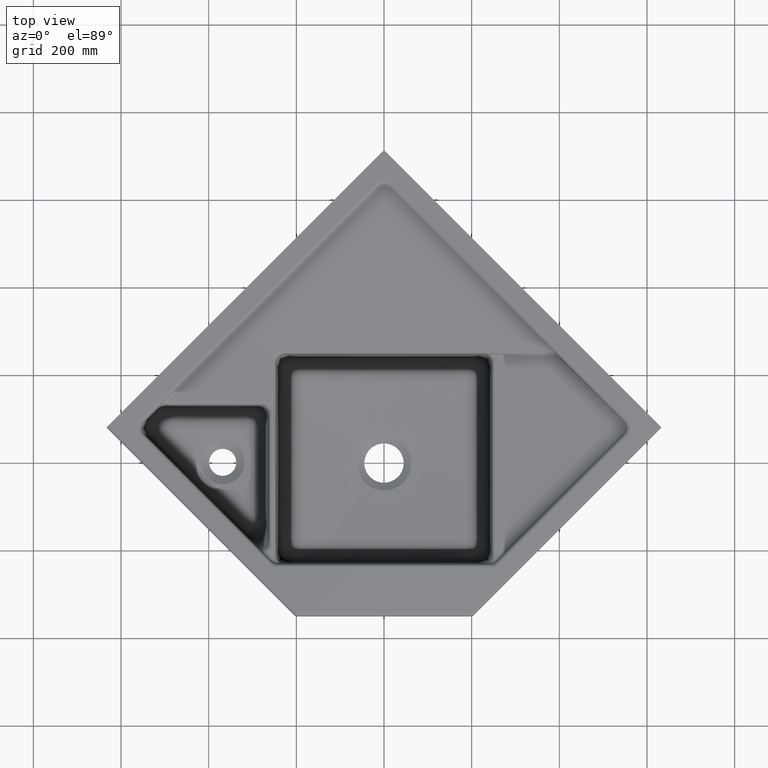
[diagram: clean part render]
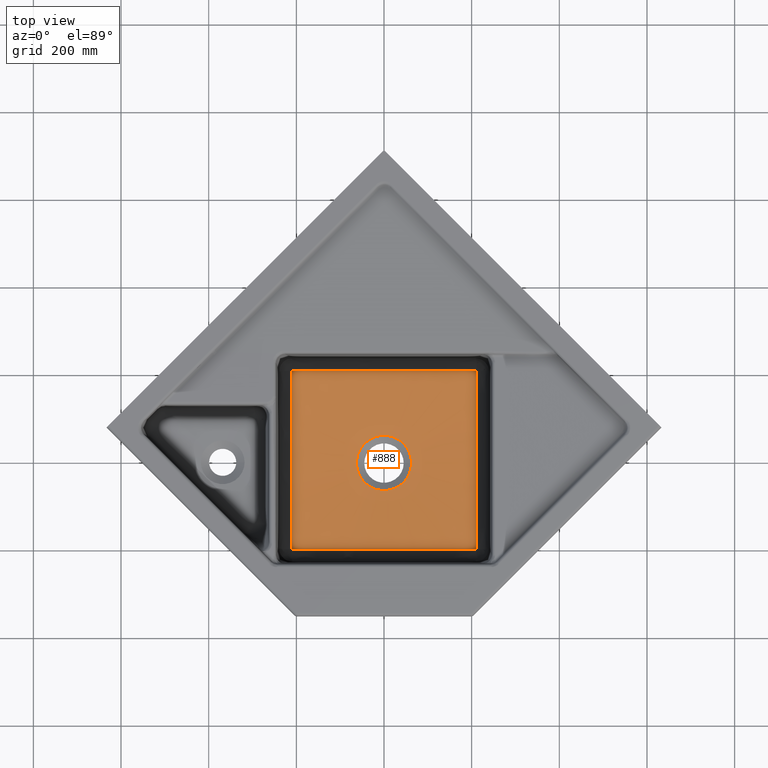
[diagram: same view with one face highlighted and labeled with its STEP entity id]
A machine part, top view. The second image highlights one B-rep face of the part: STEP entity #888.
In plain terms, the highlighted conical surface has half-angle 86 deg.
Its self-contained STEP definition (entity closure, byte-faithful):
#46=CONICAL_SURFACE('',#6134,298.8698194069,86.0000000000002);
#487=CIRCLE('',#6123,63.);
#537=FACE_BOUND('',#1862,.T.);
#538=FACE_BOUND('',#1863,.T.);
#888=ADVANCED_FACE('',(#537,#538),#46,.F.);
#1862=EDGE_LOOP('',(#3546));
#1863=EDGE_LOOP('',(#3547,#3548,#3549,#3550,#3551,#3552,#3553,#3554));
#2084=(
BOUNDED_CURVE()
B_SPLINE_CURVE(3,(#38663,#38664,#38665,#38666,#38667,#38668,#38669,#38670,
#38671,#38672,#38673,#38674,#38675,#38676),.UNSPECIFIED.,.F.,.F.)
B_SPLINE_CURVE_WITH_KNOTS((4,2,2,2,2,2,4),(0.,0.25,0.375,0.5,0.625,0.75,
1.),.UNSPECIFIED.)
CURVE()
GEOMETRIC_REPRESENTATION_ITEM()
RATIONAL_B_SPLINE_CURVE((0.999999999999986,0.999999999999987,0.999999999999987,
0.999999999999987,0.999999999999987,0.999999999999987,0.999999999999987,
0.999999999999987,0.999999999999987,0.999999999999987,0.999999999999987,
0.999999999999987,0.999999999999987,0.999999999999986))
REPRESENTATION_ITEM('')
);
#2087=(
BOUNDED_CURVE()
B_SPLINE_CURVE(3,(#38845,#38846,#38847,#38848,#38849,#38850,#38851,#38852,
#38853,#38854),.UNSPECIFIED.,.F.,.F.)
B_SPLINE_CURVE_WITH_KNOTS((4,2,2,2,4),(0.,0.25,0.5,0.75,1.),
 .UNSPECIFIED.)
CURVE()
GEOMETRIC_REPRESENTATION_ITEM()
RATIONAL_B_SPLINE_CURVE((1.,1.,1.,1.,1.,1.,1.,1.,1.,1.))
REPRESENTATION_ITEM('')
);
#2108=(
BOUNDED_CURVE()
B_SPLINE_CURVE(3,(#39852,#39853,#39854,#39855,#39856,#39857,#39858,#39859,
#39860,#39861),.UNSPECIFIED.,.F.,.F.)
B_SPLINE_CURVE_WITH_KNOTS((4,2,2,2,4),(0.,0.25,0.5,0.75,1.),
 .UNSPECIFIED.)
CURVE()
GEOMETRIC_REPRESENTATION_ITEM()
RATIONAL_B_SPLINE_CURVE((0.999999999999999,0.999999999999999,0.999999999999999,
0.999999999999999,0.999999999999999,0.999999999999999,0.999999999999999,
0.999999999999999,0.999999999999999,0.999999999999999))
REPRESENTATION_ITEM('')
);
#3546=ORIENTED_EDGE('',*,*,#5185,.F.);
#3547=ORIENTED_EDGE('',*,*,#5183,.F.);
#3548=ORIENTED_EDGE('',*,*,#5180,.F.);
#3549=ORIENTED_EDGE('',*,*,#5176,.F.);
#3550=ORIENTED_EDGE('',*,*,#5186,.F.);
#3551=ORIENTED_EDGE('',*,*,#5243,.T.);
#3552=ORIENTED_EDGE('',*,*,#5244,.T.);
#3553=ORIENTED_EDGE('',*,*,#5245,.T.);
#3554=ORIENTED_EDGE('',*,*,#5241,.F.);
#4389=VERTEX_POINT('',#38380);
#4390=VERTEX_POINT('',#38381);
#4392=VERTEX_POINT('',#38677);
#4394=VERTEX_POINT('',#38760);
#4395=VERTEX_POINT('',#38843);
#4396=VERTEX_POINT('',#38855);
#4427=VERTEX_POINT('',#39862);
#4428=VERTEX_POINT('',#39900);
#4429=VERTEX_POINT('',#39953);
#5176=EDGE_CURVE('',#4389,#4390,#5751,.T.);
#5180=EDGE_CURVE('',#4390,#4392,#2084,.T.);
#5183=EDGE_CURVE('',#4392,#4394,#5754,.T.);
#5185=EDGE_CURVE('',#4395,#4395,#487,.T.);
#5186=EDGE_CURVE('',#4396,#4389,#2087,.T.);
#5241=EDGE_CURVE('',#4394,#4427,#2108,.T.);
#5243=EDGE_CURVE('',#4396,#4428,#5785,.T.);
#5244=EDGE_CURVE('',#4428,#4429,#5786,.T.);
#5245=EDGE_CURVE('',#4429,#4427,#5787,.T.);
#5751=B_SPLINE_CURVE_WITH_KNOTS('',3,(#38292,#38293,#38294,#38295,#38296,
#38297,#38298,#38299,#38300,#38301,#38302,#38303,#38304,#38305,#38306,#38307,
#38308,#38309,#38310,#38311,#38312,#38313,#38314,#38315,#38316,#38317,#38318,
#38319,#38320,#38321,#38322,#38323,#38324,#38325,#38326,#38327,#38328,#38329,
#38330,#38331,#38332,#38333,#38334,#38335,#38336,#38337,#38338,#38339,#38340,
#38341,#38342,#38343,#38344,#38345,#38346,#38347,#38348,#38349,#38350,#38351,
#38352,#38353,#38354,#38355,#38356,#38357,#38358,#38359,#38360,#38361,#38362,
#38363,#38364,#38365,#38366,#38367,#38368,#38369,#38370,#38371,#38372,#38373,
#38374,#38375,#38376,#38377,#38378,#38379),.UNSPECIFIED.,.F.,.F.,(4,2,2,
2,2,2,2,2,2,2,2,2,2,2,2,2,2,2,2,2,2,2,2,2,2,2,2,2,2,2,2,2,2,2,2,2,2,2,2,
2,2,2,2,4),(0.,0.000244140625000111,0.00048828125,0.000732421874999889,
0.000976562500000111,0.00146484375000011,0.00195312500000011,0.00292968750000022,
0.00341796875,0.00390625,0.00488281249999989,0.005859375,0.00781250000000011,
0.0117187499999999,0.015625,0.0312499999999999,0.0625,0.09375,0.125,0.1875,
0.25,0.375,0.5,0.625,0.75,0.8125,0.875,0.9375,0.96875,0.984375,0.98828125,
0.9921875,0.994140625,0.9951171875,0.99609375,0.99658203125,0.9970703125,
0.998046875,0.99853515625,0.9990234375,0.999267578125,0.99951171875,0.999755859375,
1.),.UNSPECIFIED.);
#5754=B_SPLINE_CURVE_WITH_KNOTS('',3,(#38734,#38735,#38736,#38737,#38738,
#38739,#38740,#38741,#38742,#38743,#38744,#38745,#38746,#38747,#38748,#38749,
#38750,#38751,#38752,#38753,#38754,#38755,#38756,#38757,#38758,#38759),
 .UNSPECIFIED.,.F.,.F.,(4,2,2,2,2,2,2,2,2,2,2,2,4),(0.,0.0312499999999999,
0.0624999999999998,0.125,0.25,0.375,0.5,0.625,0.75,0.875,0.9375,0.96875,
1.),.UNSPECIFIED.);
#5785=B_SPLINE_CURVE_WITH_KNOTS('',3,(#39896,#39897,#39898,#39899),
 .UNSPECIFIED.,.F.,.F.,(4,4),(0.,1.),.UNSPECIFIED.);
#5786=B_SPLINE_CURVE_WITH_KNOTS('',3,(#39901,#39902,#39903,#39904,#39905,
#39906,#39907,#39908,#39909,#39910,#39911,#39912,#39913,#39914,#39915,#39916,
#39917,#39918,#39919,#39920,#39921,#39922,#39923,#39924,#39925,#39926,#39927,
#39928,#39929,#39930,#39931,#39932,#39933,#39934,#39935,#39936,#39937,#39938,
#39939,#39940,#39941,#39942,#39943,#39944,#39945,#39946,#39947,#39948,#39949,
#39950,#39951,#39952),.UNSPECIFIED.,.F.,.F.,(4,2,2,2,2,1,2,2,2,2,2,2,2,
2,2,2,2,2,2,2,2,2,1,2,2,2,4),(0.,0.124999999999997,0.187499999999996,0.218749999999995,
0.234374999999995,0.242187499999995,0.246093749999995,0.249999999999995,
0.312499999999994,0.343749999999994,0.359374999999994,0.367187499999994,
0.374999999999994,0.499999999999994,0.562499999999994,0.593749999999994,
0.609374999999994,0.617187499999994,0.624999999999993,0.687499999999993,
0.718749999999993,0.734374999999993,0.742187499999993,0.746093749999993,
0.749999999999993,0.874999999999996,1.),.UNSPECIFIED.);
#5787=B_SPLINE_CURVE_WITH_KNOTS('',3,(#39954,#39955,#39956,#39957),
 .UNSPECIFIED.,.F.,.F.,(4,4),(0.,1.),.UNSPECIFIED.);
#6123=AXIS2_PLACEMENT_3D('',#38842,#6754,#6755);
#6134=AXIS2_PLACEMENT_3D('',#39958,#6779,#6780);
#6754=DIRECTION('',(0.,0.,1.));
#6755=DIRECTION('',(1.,0.,0.));
#6779=DIRECTION('',(0.,0.,1.));
#6780=DIRECTION('',(1.,0.,-1.18820452028904E-18));
#38292=CARTESIAN_POINT('',(210.901585394065,-197.12776954421,15.7814091814044));
#38293=CARTESIAN_POINT('',(210.901585153383,-197.127791494144,15.7814102172049));
#38294=CARTESIAN_POINT('',(210.901585462079,-197.127813531942,15.7814112852664));
#38295=CARTESIAN_POINT('',(210.901584834542,-197.127857362625,15.7814133460969));
#38296=CARTESIAN_POINT('',(210.901584979164,-197.127879381467,15.7814144048716));
#38297=CARTESIAN_POINT('',(210.901584216516,-197.127923181642,15.7814164573435));
#38298=CARTESIAN_POINT('',(210.901584228447,-197.127945170524,15.7814175079091));
#38299=CARTESIAN_POINT('',(210.901583339623,-197.127988942209,15.7814195525752));
#38300=CARTESIAN_POINT('',(210.901583238886,-197.128010905651,15.7814205961706));
#38301=CARTESIAN_POINT('',(210.901581727328,-197.128076522916,15.7814236521381));
#38302=CARTESIAN_POINT('',(210.901581237758,-197.12812038475,15.7814257215058));
#38303=CARTESIAN_POINT('',(210.901578781882,-197.128207774982,15.7814297688803));
#38304=CARTESIAN_POINT('',(210.901577970748,-197.128251564209,15.7814318183544));
#38305=CARTESIAN_POINT('',(210.901573681767,-197.128382512915,15.7814378519786));
#38306=CARTESIAN_POINT('',(210.901571257864,-197.128469910365,15.7814419013343));
#38307=CARTESIAN_POINT('',(210.901565881527,-197.128600613553,15.7814478676916));
#38308=CARTESIAN_POINT('',(210.901564337438,-197.128644237284,15.7814498718222));
#38309=CARTESIAN_POINT('',(210.901560422476,-197.128731298064,15.7814538289335));
#38310=CARTESIAN_POINT('',(210.901558477651,-197.128774831311,15.7814558082725));
#38311=CARTESIAN_POINT('',(210.901552740217,-197.128905452965,15.7814617522944));
#38312=CARTESIAN_POINT('',(210.901548002386,-197.128992327947,15.7814656585004));
#38313=CARTESIAN_POINT('',(210.901538977023,-197.129166179584,15.7814734987741));
#38314=CARTESIAN_POINT('',(210.901533755507,-197.129252945353,15.7814773750591));
#38315=CARTESIAN_POINT('',(210.901518412045,-197.129513315156,15.7814890237834));
#38316=CARTESIAN_POINT('',(210.901506504827,-197.129686516089,15.7814966857781));
#38317=CARTESIAN_POINT('',(210.901469526707,-197.130205835183,15.7815195940481));
#38318=CARTESIAN_POINT('',(210.901440386852,-197.130551034601,15.781534588609));
#38319=CARTESIAN_POINT('',(210.901377201504,-197.131240325769,15.7815642742882));
#38320=CARTESIAN_POINT('',(210.901342098904,-197.131584178833,15.7815789000064));
#38321=CARTESIAN_POINT('',(210.901155063818,-197.13330084252,15.7816513159004));
#38322=CARTESIAN_POINT('',(210.900962682568,-197.134664520029,15.7817066040541));
#38323=CARTESIAN_POINT('',(210.900298633636,-197.138735929732,15.7818670934206));
#38324=CARTESIAN_POINT('',(210.899736554074,-197.141423247315,15.7819667025937));
#38325=CARTESIAN_POINT('',(210.898442296119,-197.14675947467,15.7821554018257));
#38326=CARTESIAN_POINT('',(210.897707704067,-197.149407839457,15.782244342557));
#38327=CARTESIAN_POINT('',(210.896092394106,-197.154671574142,15.782413188423));
#38328=CARTESIAN_POINT('',(210.895210993921,-197.157286789987,15.782493051347));
#38329=CARTESIAN_POINT('',(210.892369059007,-197.165087789448,15.7827204145706));
#38330=CARTESIAN_POINT('',(210.890227991671,-197.17018219273,15.7828543363879));
#38331=CARTESIAN_POINT('',(210.885567502371,-197.180123965948,15.7830910765722));
#38332=CARTESIAN_POINT('',(210.883041961334,-197.184983537745,15.7831941650553));
#38333=CARTESIAN_POINT('',(210.874941499077,-197.199263676205,15.7834624458168));
#38334=CARTESIAN_POINT('',(210.868847501874,-197.208388380799,15.783587026353));
#38335=CARTESIAN_POINT('',(210.855379528236,-197.225908232443,15.7837360583437));
#38336=CARTESIAN_POINT('',(210.848093226016,-197.234177881154,15.7837589931217));
#38337=CARTESIAN_POINT('',(210.83263280614,-197.249629159443,15.7837076372798));
#38338=CARTESIAN_POINT('',(210.824435723439,-197.256840283348,15.7836335826424));
#38339=CARTESIAN_POINT('',(210.807071750135,-197.270193763295,15.7833849773378));
#38340=CARTESIAN_POINT('',(210.797831009373,-197.276377230953,15.7832086210218));
#38341=CARTESIAN_POINT('',(210.783482819509,-197.28451172221,15.7828647739177));
#38342=CARTESIAN_POINT('',(210.77861655408,-197.287037152865,15.7827370125713));
#38343=CARTESIAN_POINT('',(210.768701287633,-197.291680990005,15.7824527297457));
#38344=CARTESIAN_POINT('',(210.76365287185,-197.293800700053,15.782296300445));
#38345=CARTESIAN_POINT('',(210.753340649619,-197.297560359684,15.7819495367813));
#38346=CARTESIAN_POINT('',(210.748055735111,-197.299211637499,15.7817586663303));
#38347=CARTESIAN_POINT('',(210.739987428348,-197.301169811536,15.7814403870284));
#38348=CARTESIAN_POINT('',(210.737284113024,-197.301734672936,15.7813293883006));
#38349=CARTESIAN_POINT('',(210.733200335594,-197.302399621727,15.7811527079077));
#38350=CARTESIAN_POINT('',(210.731834411228,-197.30259173867,15.7810921653111));
#38351=CARTESIAN_POINT('',(210.730118493986,-197.302778001583,15.7810134778542));
#38352=CARTESIAN_POINT('',(210.729774942173,-197.302812922267,15.7809976101369));
#38353=CARTESIAN_POINT('',(210.729086726399,-197.302875723229,15.7809654815001));
#38354=CARTESIAN_POINT('',(210.728742227286,-197.302904647083,15.780949278871));
#38355=CARTESIAN_POINT('',(210.728224415816,-197.302941304831,15.7809245991591));
#38356=CARTESIAN_POINT('',(210.72805174474,-197.302953098346,15.7809163488143));
#38357=CARTESIAN_POINT('',(210.727792342071,-197.3029682814,15.7809038332617));
#38358=CARTESIAN_POINT('',(210.727705890884,-197.302973446045,15.7808996672004));
#38359=CARTESIAN_POINT('',(210.727532765968,-197.302982366536,15.7808912563904));
#38360=CARTESIAN_POINT('',(210.727446238452,-197.302987047982,15.7808870633423));
#38361=CARTESIAN_POINT('',(210.727316232305,-197.302992709902,15.7808806977936));
#38362=CARTESIAN_POINT('',(210.72727290196,-197.302994629099,15.7808785777256));
#38363=CARTESIAN_POINT('',(210.727186245004,-197.302998491131,15.7808743389107));
#38364=CARTESIAN_POINT('',(210.727142851801,-197.303000012399,15.7808721966167));
#38365=CARTESIAN_POINT('',(210.72701278833,-197.303005311436,15.7808658108027));
#38366=CARTESIAN_POINT('',(210.726925897614,-197.303007693645,15.7808614893329));
#38367=CARTESIAN_POINT('',(210.726795663342,-197.303011911427,15.780855043128));
#38368=CARTESIAN_POINT('',(210.726752155168,-197.303012704875,15.7808528601825));
#38369=CARTESIAN_POINT('',(210.726665269049,-197.303015116192,15.7808485403414));
#38370=CARTESIAN_POINT('',(210.726621710564,-197.303015591148,15.7808463396067));
#38371=CARTESIAN_POINT('',(210.726556494237,-197.30301707211,15.7808430814323));
#38372=CARTESIAN_POINT('',(210.726534692496,-197.303017167162,15.7808419731099));
#38373=CARTESIAN_POINT('',(210.726491196348,-197.303018036746,15.7808397944183));
#38374=CARTESIAN_POINT('',(210.726469377038,-197.303018020573,15.7808386798833));
#38375=CARTESIAN_POINT('',(210.726425861172,-197.303018765331,15.7808364942198));
#38376=CARTESIAN_POINT('',(210.726404021206,-197.3030186184,15.7808353723812));
#38377=CARTESIAN_POINT('',(210.726360484251,-197.30301922965,15.7808331792607));
#38378=CARTESIAN_POINT('',(210.726338630871,-197.303018921525,15.7808320490337));
#38379=CARTESIAN_POINT('',(210.726316838944,-197.303019154977,15.7808309478272));
#38380=CARTESIAN_POINT('',(210.901585394066,-197.127769543442,15.7814091813677));
#38381=CARTESIAN_POINT('',(210.726316839186,-197.303019154977,15.7808309478396));
#38663=CARTESIAN_POINT('',(210.726316839308,-197.303019154978,15.7808309478459));
#38664=CARTESIAN_POINT('',(175.756464511646,-197.336159780434,13.997386865504));
#38665=CARTESIAN_POINT('',(140.72929514619,-197.404697241757,12.4077903666687));
#38666=CARTESIAN_POINT('',(88.0295744354313,-197.519018097968,10.6771676684934));
#38667=CARTESIAN_POINT('',(70.4337258274182,-197.557607808936,10.2125360251436));
#38668=CARTESIAN_POINT('',(35.2147061852172,-197.614427280834,9.58030160286545));
#38669=CARTESIAN_POINT('',(17.590213408941,-197.631777355315,9.41417297225965));
#38670=CARTESIAN_POINT('',(-17.6537837764783,-197.631737962963,9.41456658411668));
#38671=CARTESIAN_POINT('',(-35.2720012538508,-197.614352466796,9.58107647341065));
#38672=CARTESIAN_POINT('',(-70.4672491065169,-197.557536058579,10.2133921360782));
#38673=CARTESIAN_POINT('',(-88.0440956631705,-197.518986595069,10.6776430431812));
#38674=CARTESIAN_POINT('',(-140.701300671968,-197.404757974183,12.4068740323237));
#38675=CARTESIAN_POINT('',(-175.710040259209,-197.336238449819,13.9952620974418));
#38676=CARTESIAN_POINT('',(-210.6655306797,-197.303076791616,15.7777310966145));
#38677=CARTESIAN_POINT('',(-210.6655306797,-197.303076791615,15.7777310966144));
#38734=CARTESIAN_POINT('',(-210.6655306797,-197.303076791615,15.7777310966144));
#38735=CARTESIAN_POINT('',(-210.669329867459,-197.303072210624,15.7779247801315));
#38736=CARTESIAN_POINT('',(-210.673085801261,-197.302825106803,15.7781046658205));
#38737=CARTESIAN_POINT('',(-210.680541804809,-197.302033688286,15.7784473854412));
#38738=CARTESIAN_POINT('',(-210.684241282061,-197.30148265323,15.7786098678824));
#38739=CARTESIAN_POINT('',(-210.695272291161,-197.299462411638,15.7790763355595));
#38740=CARTESIAN_POINT('',(-210.702536703018,-197.297627716835,15.7793594353939));
#38741=CARTESIAN_POINT('',(-210.724117157906,-197.290964991301,15.780142544205));
#38742=CARTESIAN_POINT('',(-210.738002956924,-197.285041131846,15.7805682655181));
#38743=CARTESIAN_POINT('',(-210.764429124388,-197.271167148563,15.7812543413076));
#38744=CARTESIAN_POINT('',(-210.777069220055,-197.263163328925,15.7815172195465));
#38745=CARTESIAN_POINT('',(-210.801282836317,-197.245169860117,15.7818937976604));
#38746=CARTESIAN_POINT('',(-210.812659976113,-197.235313830071,15.7820038554918));
#38747=CARTESIAN_POINT('',(-210.833816303048,-197.214164740107,15.7820738859553));
#38748=CARTESIAN_POINT('',(-210.843634209716,-197.202843108645,15.7820344703569));
#38749=CARTESIAN_POINT('',(-210.861657882094,-197.178615621967,15.7817977984673));
#38750=CARTESIAN_POINT('',(-210.869698725739,-197.165927788278,15.7816025330239));
#38751=CARTESIAN_POINT('',(-210.883589069261,-197.139489321873,15.7810494652457));
#38752=CARTESIAN_POINT('',(-210.889496938283,-197.125662949636,15.7806910279683));
#38753=CARTESIAN_POINT('',(-210.896187005108,-197.104027849912,15.7799997662098));
#38754=CARTESIAN_POINT('',(-210.898027915381,-197.096748258195,15.7797462422178));
#38755=CARTESIAN_POINT('',(-210.900054285999,-197.08570063082,15.7793223042221));
#38756=CARTESIAN_POINT('',(-210.900606829123,-197.081996642724,15.7791736915809));
#38757=CARTESIAN_POINT('',(-210.90140049333,-197.074534330937,15.7788579676275));
#38758=CARTESIAN_POINT('',(-210.90164831026,-197.070776568436,15.7786912252325));
#38759=CARTESIAN_POINT('',(-210.901653545449,-197.066977695825,15.7785101287614));
#38760=CARTESIAN_POINT('',(-210.901653545449,-197.066977695825,15.7785101287616));
#38842=CARTESIAN_POINT('',(0.,0.,0.));
#38843=CARTESIAN_POINT('',(63.,0.,0.));
#38845=CARTESIAN_POINT('',(210.888594357264,209.735379659813,16.3927454840983));
#38846=CARTESIAN_POINT('',(210.920311344927,175.973899490942,14.7295403572006));
#38847=CARTESIAN_POINT('',(210.980950657835,142.163232829621,13.2589010261118));
#38848=CARTESIAN_POINT('',(211.111093157507,74.3848568711161,11.1035566690275));
#38849=CARTESIAN_POINT('',(211.174356266682,40.4074561893957,10.4402015877312));
#38850=CARTESIAN_POINT('',(211.187254783487,-27.6028122239329,10.2969905775749));
#38851=CARTESIAN_POINT('',(211.134499795669,-61.6195586722244,10.8215337232546));
#38852=CARTESIAN_POINT('',(211.006127717286,-129.493207577891,12.7708097846251));
#38853=CARTESIAN_POINT('',(210.939448333908,-163.340595522571,14.1700265151867));
#38854=CARTESIAN_POINT('',(210.901585394068,-197.127769541905,15.7814091812945));
#38855=CARTESIAN_POINT('',(210.888594357264,209.735379659813,16.3927454840983));
#39852=CARTESIAN_POINT('',(-210.901653545448,-197.066977695825,15.7785101287617));
#39853=CARTESIAN_POINT('',(-210.939528898571,-163.294682793462,14.1681046022636));
#39854=CARTESIAN_POINT('',(-211.006188727805,-129.462201081479,12.7697831314404));
#39855=CARTESIAN_POINT('',(-211.134499383632,-61.6185245883173,10.821640261324));
#39856=CARTESIAN_POINT('',(-211.187228247761,-27.6168808567717,10.2972861412178));
#39857=CARTESIAN_POINT('',(-211.174393815937,40.3633217834593,10.4397837427182));
#39858=CARTESIAN_POINT('',(-211.111205969784,74.3257719622941,11.102264231392));
#39859=CARTESIAN_POINT('',(-210.981121815675,142.074425033616,13.255491771911));
#39860=CARTESIAN_POINT('',(-210.920466816725,175.870297043765,14.7249136196249));
#39861=CARTESIAN_POINT('',(-210.888705690081,209.616978660194,16.3869134842325));
#39862=CARTESIAN_POINT('',(-210.888705690082,209.616978660195,16.3869134842326));
#39896=CARTESIAN_POINT('',(210.888594357264,209.735379659813,16.3927454840983));
#39897=CARTESIAN_POINT('',(210.888530772863,209.803062742349,16.3960797825151));
#39898=CARTESIAN_POINT('',(210.7859521077,209.905694843006,16.3960587208463));
#39899=CARTESIAN_POINT('',(210.718214889203,209.905757656194,16.3927060418296));
#39900=CARTESIAN_POINT('',(210.718214889203,209.905757656193,16.3927060418295));
#39901=CARTESIAN_POINT('',(210.718214889203,209.905757656193,16.3927060418295));
#39902=CARTESIAN_POINT('',(191.674246855571,209.923417257524,15.4501177064573));
#39903=CARTESIAN_POINT('',(173.506681957079,209.963495369514,14.6158389076816));
#39904=CARTESIAN_POINT('',(147.34518923372,210.004164536043,13.5268850144126));
#39905=CARTESIAN_POINT('',(138.804514854181,210.016213191377,13.190977767472));
#39906=CARTESIAN_POINT('',(126.215765535642,210.034980690345,12.7277329732849));
#39907=CARTESIAN_POINT('',(122.056408509038,210.041385748988,12.5800873879264));
#39908=CARTESIAN_POINT('',(115.865351987947,210.051641224043,12.3687730289447));
#39909=CARTESIAN_POINT('',(113.809652722074,210.055166731169,12.3000272457934));
#39910=CARTESIAN_POINT('',(110.737069464915,210.060651181686,12.1994470758305));
#39911=CARTESIAN_POINT('',(109.203518259912,210.063442203444,12.14979161704));
#39912=CARTESIAN_POINT('',(107.673878653701,210.066310408022,12.1010880975361));
#39913=CARTESIAN_POINT('',(106.654965422626,210.068239917526,12.0688306265971));
#39914=CARTESIAN_POINT('',(106.200191378341,210.069108586774,12.0545056941489));
#39915=CARTESIAN_POINT('',(96.6312175222325,210.087587508432,11.7550468624292));
#39916=CARTESIAN_POINT('',(87.7863461066392,210.100718764849,11.5068357197331));
#39917=CARTESIAN_POINT('',(74.6493240644592,210.124041838194,11.1849677011313));
#39918=CARTESIAN_POINT('',(70.2917666479648,210.132249209327,11.0860864775044));
#39919=CARTESIAN_POINT('',(63.7713793670521,210.144377873227,10.9503768159247));
#39920=CARTESIAN_POINT('',(61.6005597729974,210.148372945068,10.9072422910416));
#39921=CARTESIAN_POINT('',(58.346134535761,210.154015228136,10.8456935471821));
#39922=CARTESIAN_POINT('',(57.2616259327117,210.155836292506,10.8257028064731));
#39923=CARTESIAN_POINT('',(55.092838050212,210.15929612715,10.7867723395435));
#39924=CARTESIAN_POINT('',(54.0406625702022,210.160890200019,10.7683777923647));
#39925=CARTESIAN_POINT('',(35.0608960159952,210.187326422567,10.4460680260553));
#39926=CARTESIAN_POINT('',(17.8096711618168,210.201920937316,10.2940494850842));
#39927=CARTESIAN_POINT('',(-8.72996391610385,210.201891306543,10.2930181411082));
#39928=CARTESIAN_POINT('',(-17.4668930375723,210.188347745671,10.3305393255241));
#39929=CARTESIAN_POINT('',(-30.6077792389729,210.178213730008,10.4436185507599));
#39930=CARTESIAN_POINT('',(-34.9939312722449,210.175873592623,10.4907778672738));
#39931=CARTESIAN_POINT('',(-41.6058553302238,210.172151043174,10.5757162041977));
#39932=CARTESIAN_POINT('',(-43.8152689239896,210.170837982563,10.6063955435311));
#39933=CARTESIAN_POINT('',(-47.1404280304803,210.168219979402,10.6559643930695));
#39934=CARTESIAN_POINT('',(-48.250653352776,210.16723709543,10.6730789830053));
#39935=CARTESIAN_POINT('',(-50.475251413265,210.164935649721,10.7084914430564));
#39936=CARTESIAN_POINT('',(-51.6211848239362,210.163573204583,10.727323187478));
#39937=CARTESIAN_POINT('',(-61.3872359133461,210.149998258623,10.8925239105656));
#39938=CARTESIAN_POINT('',(-70.064692093743,210.131640772242,11.0730867470944));
#39939=CARTESIAN_POINT('',(-83.2117743430754,210.108618831659,11.3945076258974));
#39940=CARTESIAN_POINT('',(-87.6157225689893,210.101359977211,11.5100773561667));
#39941=CARTESIAN_POINT('',(-94.2688307698674,210.090364713469,11.6960761075731));
#39942=CARTESIAN_POINT('',(-96.4943817014384,210.086667646044,11.7601830507089));
#39943=CARTESIAN_POINT('',(-99.8461840894567,210.080872062182,11.8595045044133));
#39944=CARTESIAN_POINT('',(-101.525452736669,210.077910754036,11.9099554910157));
#39945=CARTESIAN_POINT('',(-103.210078010766,210.07480781893,11.9615918672433));
#39946=CARTESIAN_POINT('',(-104.334384857832,210.072702047083,11.9962795379784));
#39947=CARTESIAN_POINT('',(-104.951621582142,210.071524944084,12.0154574384007));
#39948=CARTESIAN_POINT('',(-121.746033565533,210.038946334975,12.5403191446003));
#39949=CARTESIAN_POINT('',(-138.46642301894,210.017822791654,13.1577545696013));
#39950=CARTESIAN_POINT('',(-173.367250033681,209.963601402562,14.6095826575814));
#39951=CARTESIAN_POINT('',(-191.544747057812,209.923570534967,15.4439753205607));
#39952=CARTESIAN_POINT('',(-210.599814595367,209.905867552395,16.3868466025291));
#39953=CARTESIAN_POINT('',(-210.599814595367,209.905867552395,16.3868466025294));
#39954=CARTESIAN_POINT('',(-210.599814595367,209.905867552395,16.3868466025291));
#39955=CARTESIAN_POINT('',(-210.736278443731,209.905740771572,16.3935990238152));
#39956=CARTESIAN_POINT('',(-210.888577402839,209.753285814216,16.3936265138011));
#39957=CARTESIAN_POINT('',(-210.888705690085,209.616978660195,16.3869134842327));
#39958=CARTESIAN_POINT('',(0.,0.,16.4936245048153));